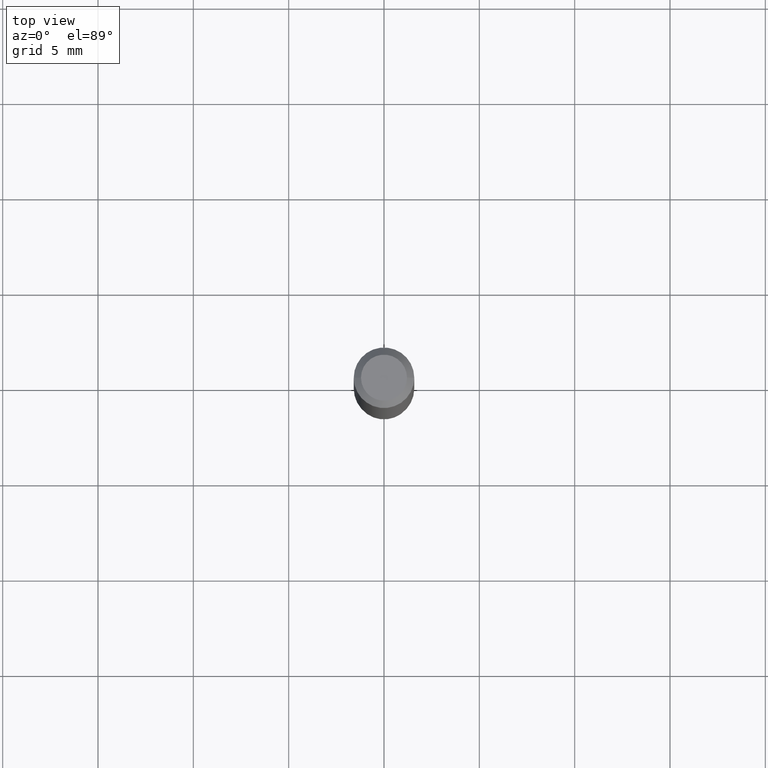
[diagram: clean part render]
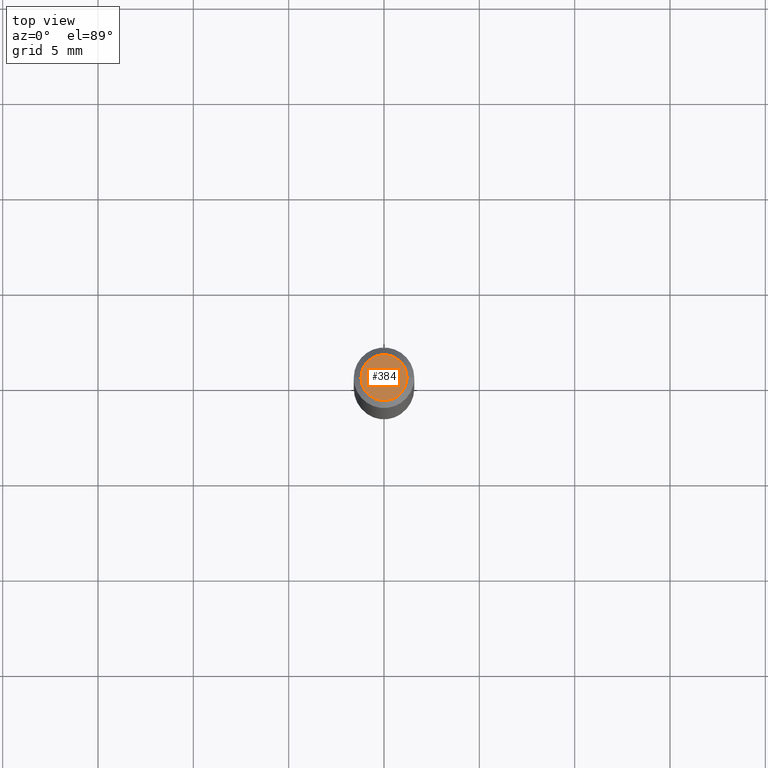
[diagram: same view with one face highlighted and labeled with its STEP entity id]
A machine part, top view. The second image highlights one B-rep face of the part: STEP entity #384.
In plain terms, the highlighted planar face has unit normal (0, -0, -1).
Its self-contained STEP definition (entity closure, byte-faithful):
#14 = DIRECTION ( 'NONE',  ( 1.000000000000000000, -6.982962677686267499E-15, 4.852736867747366768E-29 ) ) ;
#27 = DIRECTION ( 'NONE',  ( -2.445468806185136597E-29, 3.491481338843145583E-15, 1.000000000000000000 ) ) ;
#35 = EDGE_CURVE ( 'NONE', #91, #421, #399, .T. ) ;
#49 = CARTESIAN_POINT ( 'NONE',  ( 3.316907271900976096E-16, 0.04749999999999999362, -2.653275547260257586E-16 ) ) ;
#76 = AXIS2_PLACEMENT_3D ( 'NONE', #459, #27, #170 ) ;
#80 = DIRECTION ( 'NONE',  ( -2.445468806185136597E-29, 3.491481338843145583E-15, 1.000000000000000000 ) ) ;
#91 = VERTEX_POINT ( 'NONE', #463 ) ;
#138 = AXIS2_PLACEMENT_3D ( 'NONE', #192, #80, #14 ) ;
#157 = ORIENTED_EDGE ( 'NONE', *, *, #341, .T. ) ;
#161 = EDGE_LOOP ( 'NONE', ( #260, #157 ) ) ;
#170 = DIRECTION ( 'NONE',  ( 1.000000000000000000, -6.982962677686267499E-15, 4.852736867747366768E-29 ) ) ;
#192 = CARTESIAN_POINT ( 'NONE',  ( 4.865611903635008365E-45, -6.946804277620623666E-31, -1.989643822619527736E-16 ) ) ;
#203 = FACE_OUTER_BOUND ( 'NONE', #161, .T. ) ;
#258 = AXIS2_PLACEMENT_3D ( 'NONE', #49, #307, #309 ) ;
#260 = ORIENTED_EDGE ( 'NONE', *, *, #35, .T. ) ;
#307 = DIRECTION ( 'NONE',  ( 2.438088387897960049E-29, -3.491481338843145188E-15, -1.000000000000000000 ) ) ;
#309 = DIRECTION ( 'NONE',  ( -1.000000000000000000, 6.982962677686265922E-15, -4.876176775795935793E-29 ) ) ;
#341 = EDGE_CURVE ( 'NONE', #421, #91, #458, .T. ) ;
#344 = PLANE ( 'NONE',  #258 ) ;
#384 = ADVANCED_FACE ( 'NONE', ( #203 ), #344, .F. ) ;
#399 = CIRCLE ( 'NONE', #76, 0.04749999999999999362 ) ;
#421 = VERTEX_POINT ( 'NONE', #452 ) ;
#452 = CARTESIAN_POINT ( 'NONE',  ( 0.04749999999999999362, -4.035134999187581581E-16, -1.989643822619502098E-16 ) ) ;
#458 = CIRCLE ( 'NONE', #138, 0.04749999999999999362 ) ;
#459 = CARTESIAN_POINT ( 'NONE',  ( 4.865611903635008365E-45, -6.946804277620623666E-31, -1.989643822619527736E-16 ) ) ;
#463 = CARTESIAN_POINT ( 'NONE',  ( -0.04749999999999999362, 3.578768372314206562E-16, -1.989643822619551895E-16 ) ) ;